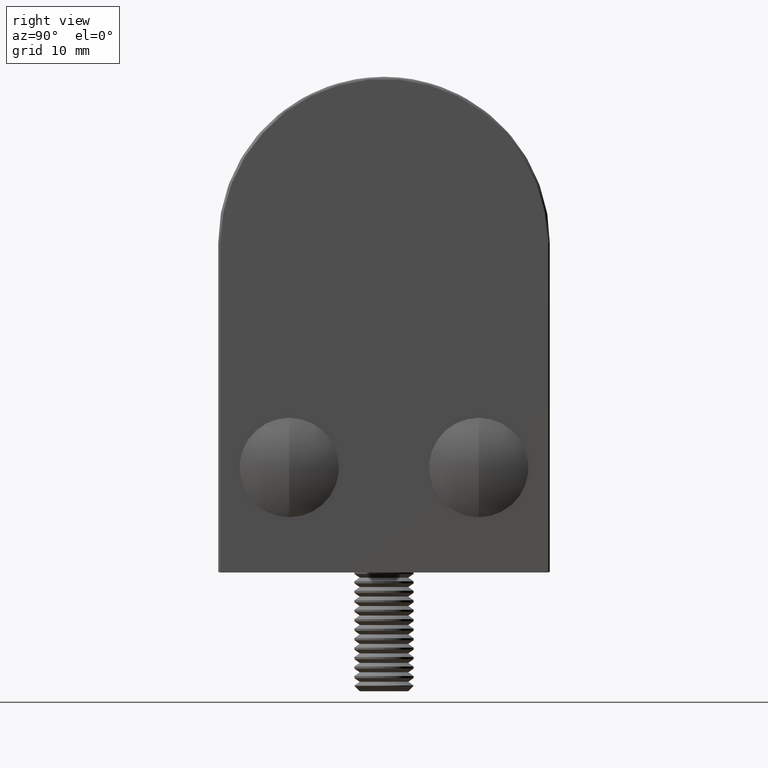
[diagram: clean part render]
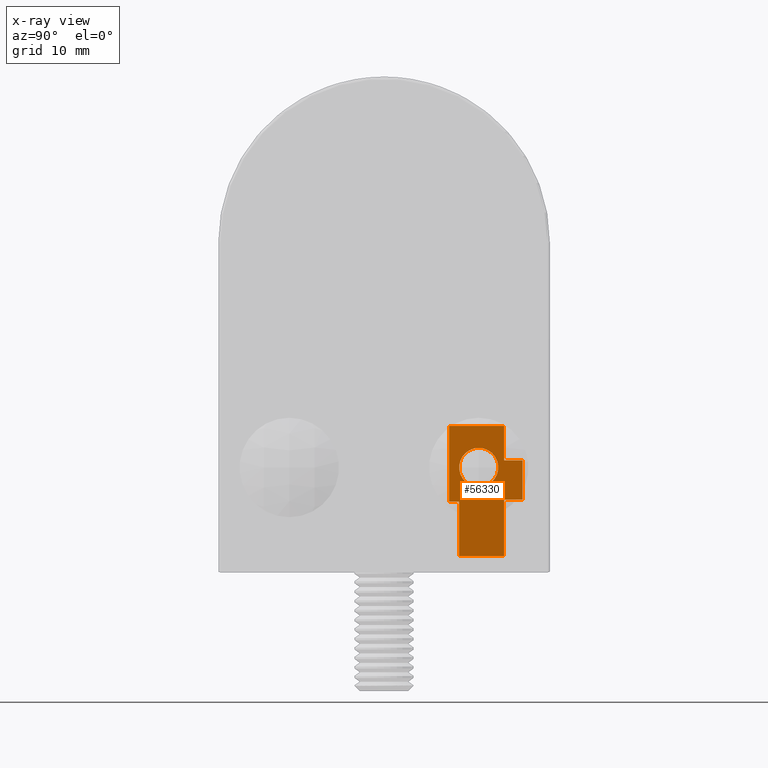
[diagram: x-ray — body ghosted, one internal face saturated and labeled with its STEP entity id]
A machine part, right view, then the same camera in x-ray: the body is ghosted and one INTERNAL B-rep face — a face not visible from any outside direction — is saturated and labeled: STEP entity #56330.
In plain terms, the highlighted planar face has unit normal (1, 0, 0).
Its self-contained STEP definition (entity closure, byte-faithful):
#206 = VERTEX_POINT ( 'NONE', #4499 ) ;
#594 = CARTESIAN_POINT ( 'NONE',  ( 13.29999999999999900, 6.349999999999997900, 4.099999999999993400 ) ) ;
#1137 = CIRCLE ( 'NONE', #3803, 1.649999999999998600 ) ;
#1493 = EDGE_CURVE ( 'NONE', #29607, #10236, #48910, .T. ) ;
#1737 = LINE ( 'NONE', #43320, #13306 ) ;
#1842 = CARTESIAN_POINT ( 'NONE',  ( 13.29999999999999900, 11.70000000000000300, 7.599999999999997000 ) ) ;
#2031 = CARTESIAN_POINT ( 'NONE',  ( 13.29999999999999900, 10.14999999999999900, 10.49999999999999600 ) ) ;
#3199 = CARTESIAN_POINT ( 'NONE',  ( 13.29999999999999900, 6.349999999999997900, 4.099999999999993400 ) ) ;
#3407 = EDGE_CURVE ( 'NONE', #14543, #34999, #43647, .T. ) ;
#3491 = AXIS2_PLACEMENT_3D ( 'NONE', #44700, #14309, #22749 ) ;
#3803 = AXIS2_PLACEMENT_3D ( 'NONE', #49492, #23332, #44536 ) ;
#4211 = VERTEX_POINT ( 'NONE', #25275 ) ;
#4241 = VECTOR ( 'NONE', #54348, 1000.000000000000000 ) ;
#4499 = CARTESIAN_POINT ( 'NONE',  ( 13.29999999999999900, 10.14999999999999900, -0.5050730854153535600 ) ) ;
#4803 = EDGE_CURVE ( 'NONE', #206, #14230, #30638, .T. ) ;
#6287 = CARTESIAN_POINT ( 'NONE',  ( 13.29999999999999900, 10.14999999999999900, 4.299999999999996300 ) ) ;
#6982 = EDGE_CURVE ( 'NONE', #41079, #15180, #1737, .T. ) ;
#7710 = LINE ( 'NONE', #45065, #30307 ) ;
#8336 = EDGE_CURVE ( 'NONE', #206, #54566, #33037, .T. ) ;
#8701 = DIRECTION ( 'NONE',  ( 0.0000000000000000000, 2.538619720941671800E-015, -1.000000000000000000 ) ) ;
#10236 = VERTEX_POINT ( 'NONE', #52143 ) ;
#10290 = ORIENTED_EDGE ( 'NONE', *, *, #4803, .T. ) ;
#10440 = DIRECTION ( 'NONE',  ( 0.0000000000000000000, -1.000000000000000000, 0.0000000000000000000 ) ) ;
#10825 = ORIENTED_EDGE ( 'NONE', *, *, #13635, .T. ) ;
#11365 = FACE_OUTER_BOUND ( 'NONE', #55392, .T. ) ;
#11647 = LINE ( 'NONE', #594, #41038 ) ;
#13306 = VECTOR ( 'NONE', #35672, 1000.000000000000000 ) ;
#13635 = EDGE_CURVE ( 'NONE', #14230, #54089, #26366, .T. ) ;
#13923 = DIRECTION ( 'NONE',  ( -0.0000000000000000000, -1.000000000000000000, -0.0000000000000000000 ) ) ;
#14015 = ORIENTED_EDGE ( 'NONE', *, *, #45449, .T. ) ;
#14123 = ORIENTED_EDGE ( 'NONE', *, *, #53071, .T. ) ;
#14230 = VERTEX_POINT ( 'NONE', #42326 ) ;
#14309 = DIRECTION ( 'NONE',  ( 1.000000000000000000, -0.0000000000000000000, -0.0000000000000000000 ) ) ;
#14543 = VERTEX_POINT ( 'NONE', #49719 ) ;
#14835 = ORIENTED_EDGE ( 'NONE', *, *, #55769, .F. ) ;
#15180 = VERTEX_POINT ( 'NONE', #45451 ) ;
#15555 = CARTESIAN_POINT ( 'NONE',  ( 13.29999999999999900, 5.499999999999999100, 4.099999999999997000 ) ) ;
#16119 = DIRECTION ( 'NONE',  ( 0.0000000000000000000, 1.000000000000000000, -4.081702296416020700E-015 ) ) ;
#16657 = EDGE_CURVE ( 'NONE', #54089, #19481, #33631, .T. ) ;
#17707 = DIRECTION ( 'NONE',  ( -0.0000000000000000000, -0.0000000000000000000, 1.000000000000000000 ) ) ;
#18970 = VECTOR ( 'NONE', #23847, 1000.000000000000000 ) ;
#19481 = VERTEX_POINT ( 'NONE', #42026 ) ;
#21027 = ORIENTED_EDGE ( 'NONE', *, *, #48080, .T. ) ;
#22749 = DIRECTION ( 'NONE',  ( 0.0000000000000000000, 0.0000000000000000000, -1.000000000000000000 ) ) ;
#23332 = DIRECTION ( 'NONE',  ( 1.000000000000000000, -0.0000000000000000000, -0.0000000000000000000 ) ) ;
#23369 = VECTOR ( 'NONE', #37917, 1000.000000000000000 ) ;
#23600 = VECTOR ( 'NONE', #32443, 1000.000000000000000 ) ;
#23656 = CARTESIAN_POINT ( 'NONE',  ( 13.29999999999999900, 11.70000000000000300, 4.299999999999996300 ) ) ;
#23847 = DIRECTION ( 'NONE',  ( -0.0000000000000000000, -0.0000000000000000000, 1.000000000000000000 ) ) ;
#23903 = EDGE_CURVE ( 'NONE', #4211, #29318, #26888, .T. ) ;
#24004 = DIRECTION ( 'NONE',  ( 1.000000000000000000, -0.0000000000000000000, 0.0000000000000000000 ) ) ;
#25275 = CARTESIAN_POINT ( 'NONE',  ( 13.29999999999999900, 6.349999999999997900, 4.099999999999993400 ) ) ;
#26160 = CARTESIAN_POINT ( 'NONE',  ( 13.29999999999999900, 8.000000000000000000, 8.649999999999996800 ) ) ;
#26366 = LINE ( 'NONE', #23656, #23600 ) ;
#26888 = LINE ( 'NONE', #3199, #37103 ) ;
#29318 = VERTEX_POINT ( 'NONE', #32481 ) ;
#29602 = CARTESIAN_POINT ( 'NONE',  ( 13.29999999999999900, 5.499999999999999100, 10.49999999999999600 ) ) ;
#29607 = VERTEX_POINT ( 'NONE', #26160 ) ;
#30307 = VECTOR ( 'NONE', #13923, 1000.000000000000000 ) ;
#30635 = LINE ( 'NONE', #15555, #52448 ) ;
#30638 = LINE ( 'NONE', #6287, #18970 ) ;
#31139 = EDGE_LOOP ( 'NONE', ( #14835, #37142 ) ) ;
#32443 = DIRECTION ( 'NONE',  ( -0.0000000000000000000, 1.000000000000000000, -0.0000000000000000000 ) ) ;
#32481 = CARTESIAN_POINT ( 'NONE',  ( 13.29999999999999900, 6.349999999999997900, 1.599999999999995400 ) ) ;
#33037 = LINE ( 'NONE', #45386, #41248 ) ;
#33631 = LINE ( 'NONE', #1842, #4241 ) ;
#34170 = AXIS2_PLACEMENT_3D ( 'NONE', #53815, #24004, #40854 ) ;
#34992 = LINE ( 'NONE', #2031, #23369 ) ;
#34999 = VERTEX_POINT ( 'NONE', #40726 ) ;
#35672 = DIRECTION ( 'NONE',  ( 0.0000000000000000000, 0.0000000000000000000, -1.000000000000000000 ) ) ;
#36435 = ORIENTED_EDGE ( 'NONE', *, *, #8336, .F. ) ;
#37103 = VECTOR ( 'NONE', #8701, 1000.000000000000000 ) ;
#37142 = ORIENTED_EDGE ( 'NONE', *, *, #1493, .F. ) ;
#37917 = DIRECTION ( 'NONE',  ( 0.0000000000000000000, -1.000000000000000000, 0.0000000000000000000 ) ) ;
#40726 = CARTESIAN_POINT ( 'NONE',  ( 13.29999999999999900, 10.14999999999999900, 10.49999999999999600 ) ) ;
#40854 = DIRECTION ( 'NONE',  ( 0.0000000000000000000, 0.0000000000000000000, -1.000000000000000000 ) ) ;
#41038 = VECTOR ( 'NONE', #53084, 1000.000000000000000 ) ;
#41079 = VERTEX_POINT ( 'NONE', #29602 ) ;
#41248 = VECTOR ( 'NONE', #10440, 1000.000000000000000 ) ;
#41609 = CARTESIAN_POINT ( 'NONE',  ( 13.29999999999999900, 11.70000000000000300, 4.299999999999996300 ) ) ;
#42026 = CARTESIAN_POINT ( 'NONE',  ( 13.29999999999999900, 11.70000000000000300, 7.599999999999997000 ) ) ;
#42326 = CARTESIAN_POINT ( 'NONE',  ( 13.29999999999999900, 10.14999999999999900, 4.299999999999996300 ) ) ;
#42770 = ORIENTED_EDGE ( 'NONE', *, *, #23903, .T. ) ;
#43320 = CARTESIAN_POINT ( 'NONE',  ( 13.29999999999999900, 5.499999999999999100, 10.49999999999999600 ) ) ;
#43647 = LINE ( 'NONE', #52464, #45730 ) ;
#44536 = DIRECTION ( 'NONE',  ( 0.0000000000000000000, 0.0000000000000000000, -1.000000000000000000 ) ) ;
#44700 = CARTESIAN_POINT ( 'NONE',  ( 13.29999999999999900, 8.000000000000000000, 6.999999999999997300 ) ) ;
#45065 = CARTESIAN_POINT ( 'NONE',  ( 13.29999999999999900, 10.14999999999999900, 7.599999999999997000 ) ) ;
#45209 = PLANE ( 'NONE',  #34170 ) ;
#45386 = CARTESIAN_POINT ( 'NONE',  ( 13.29999999999999900, -13.99999999999999500, -0.5050730854153535600 ) ) ;
#45449 = EDGE_CURVE ( 'NONE', #29318, #54566, #11647, .T. ) ;
#45451 = CARTESIAN_POINT ( 'NONE',  ( 13.29999999999999900, 5.499999999999998200, 4.099999999999993400 ) ) ;
#45730 = VECTOR ( 'NONE', #17707, 1000.000000000000000 ) ;
#48080 = EDGE_CURVE ( 'NONE', #15180, #4211, #30635, .T. ) ;
#48910 = CIRCLE ( 'NONE', #3491, 1.649999999999998600 ) ;
#48974 = CARTESIAN_POINT ( 'NONE',  ( 13.29999999999999900, 6.350000000000011200, -0.5050730854153535600 ) ) ;
#49492 = CARTESIAN_POINT ( 'NONE',  ( 13.29999999999999900, 8.000000000000000000, 6.999999999999997300 ) ) ;
#49531 = ORIENTED_EDGE ( 'NONE', *, *, #16657, .T. ) ;
#49583 = ORIENTED_EDGE ( 'NONE', *, *, #3407, .T. ) ;
#49719 = CARTESIAN_POINT ( 'NONE',  ( 13.29999999999999900, 10.14999999999999900, 7.599999999999997000 ) ) ;
#50982 = FACE_BOUND ( 'NONE', #31139, .T. ) ;
#52143 = CARTESIAN_POINT ( 'NONE',  ( 13.29999999999999900, 8.000000000000000000, 5.349999999999998800 ) ) ;
#52448 = VECTOR ( 'NONE', #16119, 1000.000000000000000 ) ;
#52464 = CARTESIAN_POINT ( 'NONE',  ( 13.29999999999999900, 10.14999999999999900, 10.49999999999999600 ) ) ;
#52471 = EDGE_CURVE ( 'NONE', #19481, #14543, #7710, .T. ) ;
#53071 = EDGE_CURVE ( 'NONE', #34999, #41079, #34992, .T. ) ;
#53084 = DIRECTION ( 'NONE',  ( 0.0000000000000000000, 2.538619720941671800E-015, -1.000000000000000000 ) ) ;
#53243 = ORIENTED_EDGE ( 'NONE', *, *, #52471, .T. ) ;
#53815 = CARTESIAN_POINT ( 'NONE',  ( 13.29999999999999900, 0.0000000000000000000, 0.0000000000000000000 ) ) ;
#54089 = VERTEX_POINT ( 'NONE', #41609 ) ;
#54348 = DIRECTION ( 'NONE',  ( -0.0000000000000000000, -0.0000000000000000000, 1.000000000000000000 ) ) ;
#54566 = VERTEX_POINT ( 'NONE', #48974 ) ;
#55392 = EDGE_LOOP ( 'NONE', ( #36435, #10290, #10825, #49531, #53243, #49583, #14123, #56603, #21027, #42770, #14015 ) ) ;
#55769 = EDGE_CURVE ( 'NONE', #10236, #29607, #1137, .T. ) ;
#56330 = ADVANCED_FACE ( 'NONE', ( #11365, #50982 ), #45209, .T. ) ;
#56603 = ORIENTED_EDGE ( 'NONE', *, *, #6982, .T. ) ;